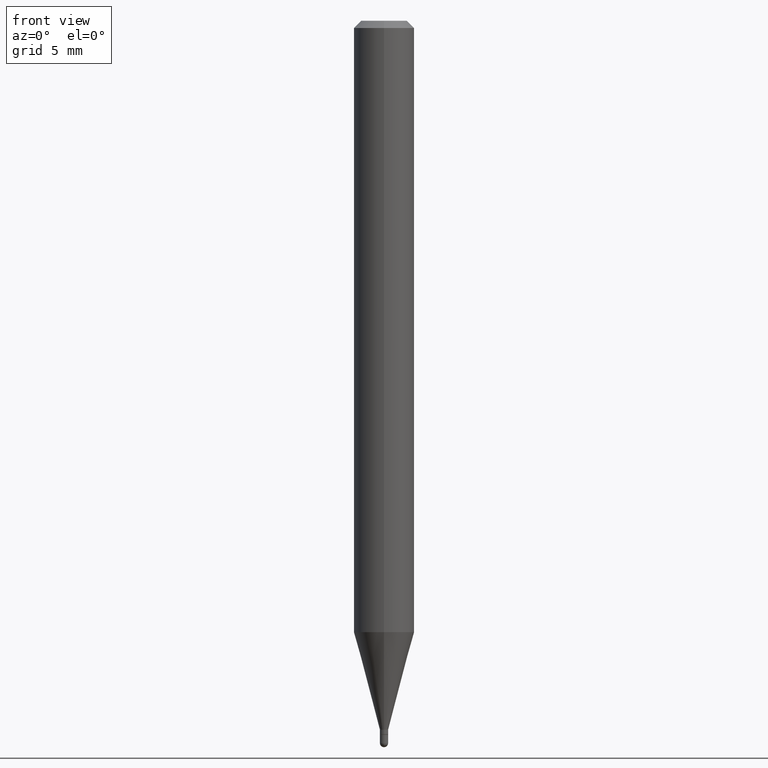
[diagram: clean part render]
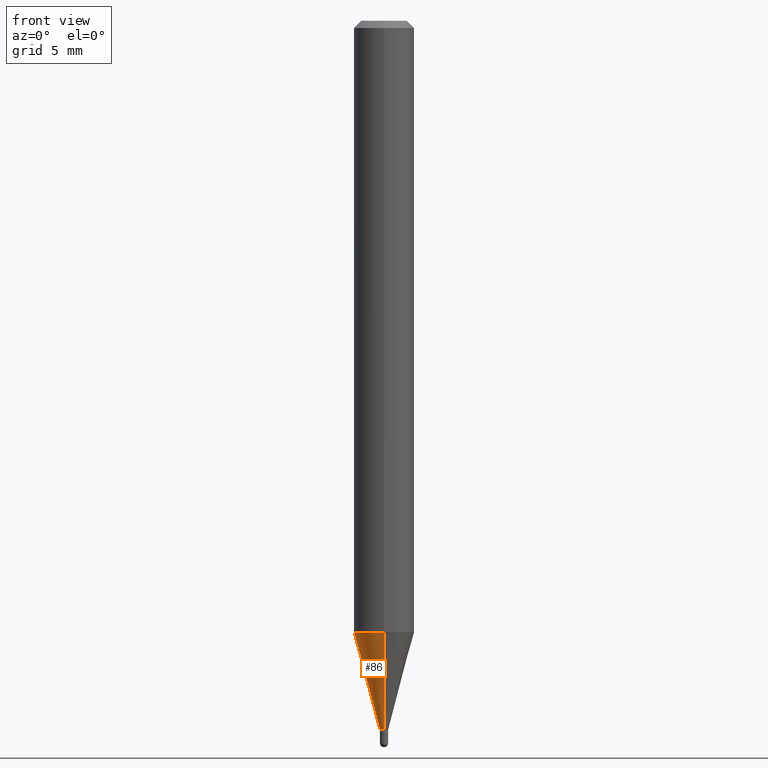
[diagram: same view with one face highlighted and labeled with its STEP entity id]
A machine part, front view. The second image highlights one B-rep face of the part: STEP entity #86.
In plain terms, the highlighted conical surface has half-angle 15 deg.
Its self-contained STEP definition (entity closure, byte-faithful):
#8 = DIRECTION ( 'NONE',  ( -6.982962677686265922E-15, -1.000000000000000000, 4.370956789862821150E-15 ) ) ;
#13 = ORIENTED_EDGE ( 'NONE', *, *, #207, .T. ) ;
#32 = EDGE_CURVE ( 'NONE', #49, #510, #325, .T. ) ;
#48 = AXIS2_PLACEMENT_3D ( 'NONE', #283, #129, #8 ) ;
#49 = VERTEX_POINT ( 'NONE', #450 ) ;
#56 = CARTESIAN_POINT ( 'NONE',  ( -5.935518276029691682E-17, -0.008500000000005034778, -1.463999999999999968 ) ) ;
#59 = CIRCLE ( 'NONE', #48, 0.06250000000000000000 ) ;
#76 = LINE ( 'NONE', #88, #288 ) ;
#83 = DIRECTION ( 'NONE',  ( -2.445473166795262930E-29, 3.491475094201254454E-15, 1.000000000000000000 ) ) ;
#86 = ADVANCED_FACE ( 'NONE', ( #192 ), #177, .T. ) ;
#88 = CARTESIAN_POINT ( 'NONE',  ( 6.039613253964376003E-17, 0.008499999999994812053, -1.463999999999999968 ) ) ;
#98 = VECTOR ( 'NONE', #171, 39.37007874015749564 ) ;
#118 = CARTESIAN_POINT ( 'NONE',  ( 3.580172716188264885E-29, -5.111519537910637170E-15, -1.463999999999999968 ) ) ;
#129 = DIRECTION ( 'NONE',  ( -2.445473166795262930E-29, 3.491475094201254454E-15, 1.000000000000000000 ) ) ;
#154 = ORIENTED_EDGE ( 'NONE', *, *, #474, .F. ) ;
#155 = DIRECTION ( 'NONE',  ( -2.445473166795262930E-29, 3.491475094201254454E-15, 1.000000000000000000 ) ) ;
#171 = DIRECTION ( 'NONE',  ( -1.807323732225328562E-15, -0.2588190451025179639, 0.9659258262890689783 ) ) ;
#177 = CONICAL_SURFACE ( 'NONE', #328, 0.008499999999999922548, 0.2617993877991501295 ) ;
#192 = FACE_OUTER_BOUND ( 'NONE', #364, .T. ) ;
#207 = EDGE_CURVE ( 'NONE', #294, #49, #311, .T. ) ;
#230 = AXIS2_PLACEMENT_3D ( 'NONE', #484, #83, #290 ) ;
#232 = DIRECTION ( 'NONE',  ( 1.839019923739599526E-15, 0.2588190451025248473, 0.9659258262890673130 ) ) ;
#248 = CARTESIAN_POINT ( 'NONE',  ( 2.522426711948687250E-16, 0.008499999999994812053, -1.463999999999999968 ) ) ;
#275 = DIRECTION ( 'NONE',  ( -6.982962677686266711E-15, -1.000000000000000000, 0.000000000000000000 ) ) ;
#283 = CARTESIAN_POINT ( 'NONE',  ( 3.087334690408846546E-29, -4.407879965884935639E-15, -1.262469256391280936 ) ) ;
#288 = VECTOR ( 'NONE', #232, 39.37007874015747433 ) ;
#289 = VERTEX_POINT ( 'NONE', #393 ) ;
#290 = DIRECTION ( 'NONE',  ( -6.982962677686266711E-15, -1.000000000000000000, 0.000000000000000000 ) ) ;
#294 = VERTEX_POINT ( 'NONE', #248 ) ;
#311 = CIRCLE ( 'NONE', #230, 0.008499999999999922548 ) ;
#325 = LINE ( 'NONE', #56, #98 ) ;
#328 = AXIS2_PLACEMENT_3D ( 'NONE', #118, #155, #275 ) ;
#364 = EDGE_LOOP ( 'NONE', ( #154, #13, #512, #507 ) ) ;
#393 = CARTESIAN_POINT ( 'NONE',  ( 4.440892098500932831E-16, 0.06249999999999557992, -1.262469256391281158 ) ) ;
#402 = CARTESIAN_POINT ( 'NONE',  ( -4.364351673553606573E-16, -0.06250000000000439926, -1.262469256391280714 ) ) ;
#428 = EDGE_CURVE ( 'NONE', #289, #510, #59, .T. ) ;
#450 = CARTESIAN_POINT ( 'NONE',  ( -5.935518276029691682E-17, -0.008500000000005034778, -1.463999999999999968 ) ) ;
#474 = EDGE_CURVE ( 'NONE', #294, #289, #76, .T. ) ;
#484 = CARTESIAN_POINT ( 'NONE',  ( 3.580172716188264885E-29, -5.111519537910637170E-15, -1.463999999999999968 ) ) ;
#507 = ORIENTED_EDGE ( 'NONE', *, *, #428, .F. ) ;
#510 = VERTEX_POINT ( 'NONE', #402 ) ;
#512 = ORIENTED_EDGE ( 'NONE', *, *, #32, .T. ) ;